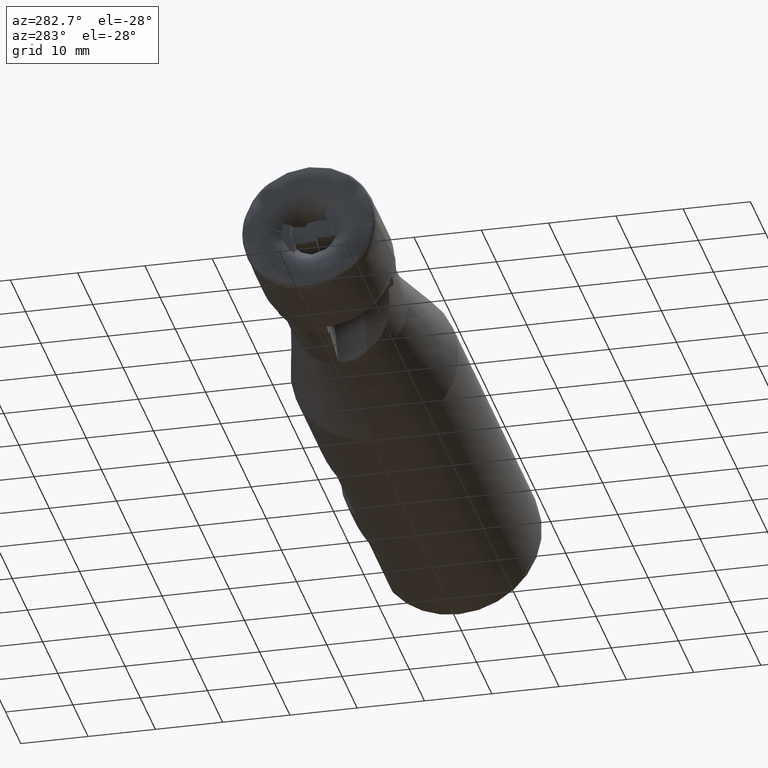
[diagram: clean part render]
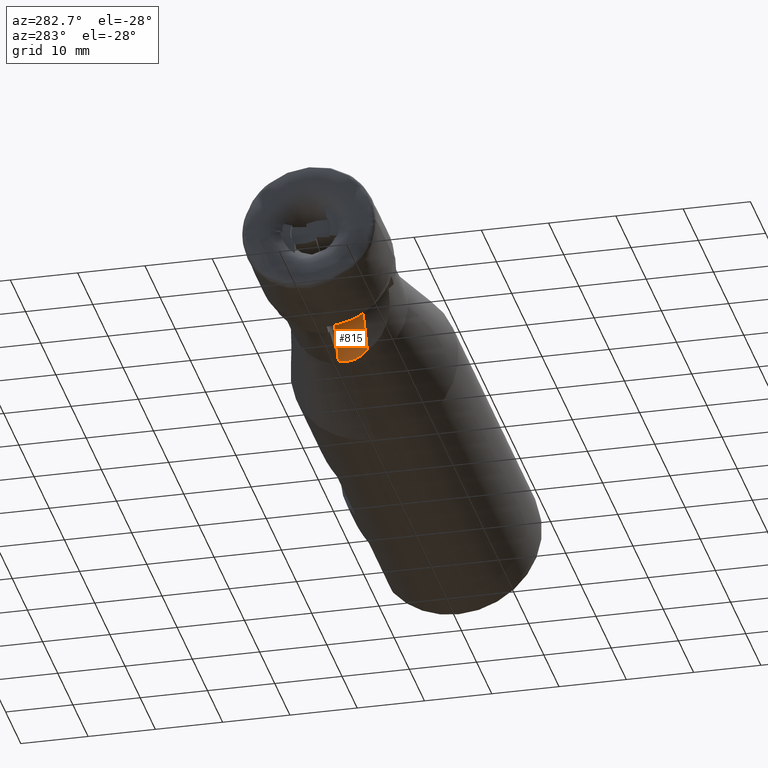
[diagram: same view with one face highlighted and labeled with its STEP entity id]
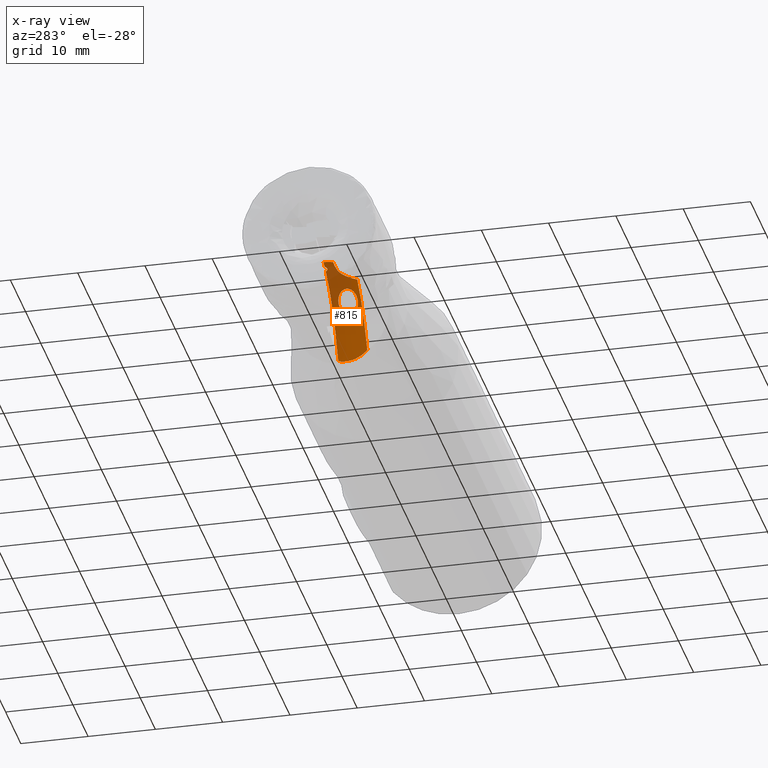
[diagram: x-ray of the same camera — body ghosted, the highlighted face saturated]
A machine part, auxiliary view. The second image highlights one B-rep face of the part: STEP entity #815.
The next image is the same camera in x-ray: the body ghosted, the highlighted face saturated — about 28% of this face is hidden behind the body in this view.
In plain terms, the highlighted toroidal blend (fillet) surface has major radius 10.884 mm and minor (blend) radius 10 mm.
Its self-contained STEP definition (entity closure, byte-faithful):
#41 = CIRCLE ( 'NONE', #676, 20.88400000000000700 ) ;
#90 = CARTESIAN_POINT ( 'NONE',  ( 25.00523610176858100, 5.412682312035088200E-015, -8.750000000000000000 ) ) ;
#100 = CARTESIAN_POINT ( 'NONE',  ( 19.04494832406326300, -0.4889408309650722400, -3.681397027868071400 ) ) ;
#103 = CARTESIAN_POINT ( 'NONE',  ( 19.48966100572471700, -1.024657287262729500, -4.020485614731864400 ) ) ;
#129 = CARTESIAN_POINT ( 'NONE',  ( 11.23514763945732800, 0.02552441210114513000, -1.062882610606581800 ) ) ;
#132 = CARTESIAN_POINT ( 'NONE',  ( 24.91628284550271700, -0.6227619918104200200, -8.732951840350338600 ) ) ;
#133 = CARTESIAN_POINT ( 'NONE',  ( 24.74002628487803800, -1.218702392632077500, -8.669893011018931600 ) ) ;
#135 = CARTESIAN_POINT ( 'NONE',  ( 10.30190673619949000, -0.06346182805844602400, -0.9729043330993625300 ) ) ;
#136 = CARTESIAN_POINT ( 'NONE',  ( 23.43376164793999200, -3.267349828298668200, -8.117076142276648200 ) ) ;
#137 = CARTESIAN_POINT ( 'NONE',  ( 24.97681617417573800, -0.3145072009141359800, -8.750000000000001800 ) ) ;
#138 = CARTESIAN_POINT ( 'NONE',  ( 11.02459479063509900, -0.1052804647818347100, -1.040171144685643000 ) ) ;
#139 = CARTESIAN_POINT ( 'NONE',  ( 24.62246767050882900, -1.510779856954307200, -8.623166605701865000 ) ) ;
#140 = CARTESIAN_POINT ( 'NONE',  ( 24.34561787329208800, -2.060939832647355800, -8.508465495732950900 ) ) ;
#141 = CARTESIAN_POINT ( 'NONE',  ( 24.18660149160178800, -2.320294763470944300, -8.440686936857252600 ) ) ;
#142 = CARTESIAN_POINT ( 'NONE',  ( 10.90528032597285900, -0.1528877076942975800, -1.028384415195529000 ) ) ;
#149 = CARTESIAN_POINT ( 'NONE',  ( 11.41435918556257300, 0.1982779828332956700, -1.086042688810845600 ) ) ;
#153 = CARTESIAN_POINT ( 'NONE',  ( 11.32910343102940900, 0.1082879746767585700, -1.074130805771298200 ) ) ;
#159 = CARTESIAN_POINT ( 'NONE',  ( 15.47385272271584500, -1.447623324622840700, -2.182082098991052500 ) ) ;
#160 = CARTESIAN_POINT ( 'NONE',  ( 10.09999745145485600, 0.08328623132604322200, -0.9590476529187306200 ) ) ;
#165 = CARTESIAN_POINT ( 'NONE',  ( 10.19584464439368800, 0.005766080994135278300, -0.9647533234062650700 ) ) ;
#193 = CARTESIAN_POINT ( 'NONE',  ( 23.63946460973665600, -3.048010613300929700, -8.205366301676601600 ) ) ;
#224 = CARTESIAN_POINT ( 'NONE',  ( 23.83421365729245900, -2.813222782786925200, -8.289435525404124800 ) ) ;
#241 = CARTESIAN_POINT ( 'NONE',  ( 15.31619526886903800, -1.663366848839784800, -2.168569718861990600 ) ) ;
#254 = CARTESIAN_POINT ( 'NONE',  ( 10.53209963767499400, -0.1565879745255515700, -0.9928148187442790200 ) ) ;
#267 = CARTESIAN_POINT ( 'NONE',  ( 19.38203401747186300, -0.8081899160687912000, -3.920078116989018600 ) ) ;
#268 = CARTESIAN_POINT ( 'NONE',  ( 19.14038533637631500, -0.5542343248852323900, -3.743706797162447100 ) ) ;
#269 = CARTESIAN_POINT ( 'NONE',  ( 16.03164002260468000, -0.9171686061118816700, -2.303108301806498400 ) ) ;
#272 = CARTESIAN_POINT ( 'NONE',  ( 17.36167453300582900, -0.3056485751753870700, -2.797550017222254000 ) ) ;
#274 = CARTESIAN_POINT ( 'NONE',  ( 15.82910995598950700, -1.076380135046355500, -2.248778973981024400 ) ) ;
#275 = CARTESIAN_POINT ( 'NONE',  ( 16.45415804393218200, -0.6494238128436143900, -2.437200428241340000 ) ) ;
#277 = CARTESIAN_POINT ( 'NONE',  ( 16.67384397852676200, -0.5407102864755276600, -2.516690544180035800 ) ) ;
#278 = CARTESIAN_POINT ( 'NONE',  ( 17.12850145652377900, -0.3681392738222501500, -2.697123615327677600 ) ) ;
#280 = CARTESIAN_POINT ( 'NONE',  ( 17.82475110695340000, -0.2342570752612876700, -3.011223649879414900 ) ) ;
#281 = CARTESIAN_POINT ( 'NONE',  ( 18.05977912225170100, -0.2244389211526817400, -3.126814823357029200 ) ) ;
#282 = CARTESIAN_POINT ( 'NONE',  ( 18.40311496909086500, -0.2605434271559492500, -3.307538699193452600 ) ) ;
#284 = CARTESIAN_POINT ( 'NONE',  ( 18.73522285508413500, -0.3420960540822599600, -3.493010192175479500 ) ) ;
#285 = CARTESIAN_POINT ( 'NONE',  ( 18.84327868046056100, -0.3832576294598820100, -3.556591325681888600 ) ) ;
#289 = CARTESIAN_POINT ( 'NONE',  ( 19.30929646501975900, -0.7141028119004739800, -3.863290113360277700 ) ) ;
#290 = CARTESIAN_POINT ( 'NONE',  ( 18.51546827286576400, -0.2809553755448521200, -3.368696162749168700 ) ) ;
#291 = CARTESIAN_POINT ( 'NONE',  ( 15.22243085588976500, -1.907470631148883800, -2.193693817598558300 ) ) ;
#293 = CARTESIAN_POINT ( 'NONE',  ( 19.52326093016867100, -1.146496912450257300, -4.063341745251066500 ) ) ;
#296 = CARTESIAN_POINT ( 'NONE',  ( 19.48935943335283800, -1.654782967664063500, -4.156202292336294200 ) ) ;
#299 = CARTESIAN_POINT ( 'NONE',  ( 19.52504782044701400, -1.529707492944751200, -4.146639617833938200 ) ) ;
#304 = CARTESIAN_POINT ( 'NONE',  ( 19.54091567611191800, -1.398538774557278400, -4.126282838499088600 ) ) ;
#305 = CARTESIAN_POINT ( 'NONE',  ( 10.65750636305701500, -0.1789041602980590800, -1.004579702775769900 ) ) ;
#344 = EDGE_LOOP ( 'NONE', ( #581, #1309 ) ) ;
#392 = EDGE_LOOP ( 'NONE', ( #1247, #1261, #541, #555, #598, #1942, #1932, #627 ) ) ;
#450 = B_SPLINE_CURVE_WITH_KNOTS ( 'NONE', 3,
 ( #1518, #1400, #1452, #1526, #1547, #1436, #1399, #1403, #1431, #1417, #1411, #1380, #1441, #1392, #1620, #1643, #1599, #1467, #1648, #1469, #1651, #1366, #1393, #1420, #1500, #1494 ),
 .UNSPECIFIED., .F., .F.,
 ( 4, 2, 2, 2, 2, 2, 2, 2, 2, 2, 2, 2, 4 ),
 ( 0.007534373769732580200, 0.007929870937406376800, 0.008325368105080173400, 0.009116362440427766600, 0.009907356775775359700, 0.01069835111112295500, 0.01148934544647054800, 0.01188484261414434300, 0.01228033978181814100, 0.01267583694949193200, 0.01307133411716572500, 0.01346683128483951900, 0.01386232845251331000 ),
 .UNSPECIFIED. ) ;
#462 = B_SPLINE_CURVE_WITH_KNOTS ( 'NONE', 3,
 ( #2267, #2255, #2289, #2219, #2230, #2309, #2365, #2221, #2224, #2174, #2168, #2142, #2284, #2264, #2182, #2374, #2245, #2330, #2299, #2318 ),
 .UNSPECIFIED., .F., .F.,
 ( 4, 2, 2, 2, 2, 2, 2, 2, 2, 4 ),
 ( 9.697399036122160600E-019, 0.0007244383642552741600, 0.001448876728510547000, 0.001811095910638184200, 0.002173315092765821800, 0.002897753457021094900, 0.003259972639148729000, 0.003622191821276363200, 0.004346630185531630600, 0.005795506914042167200 ),
 .UNSPECIFIED. ) ;
#465 = B_SPLINE_CURVE_WITH_KNOTS ( 'NONE', 3,
 ( #291, #241, #159, #274, #269, #275, #277, #278, #272, #280, #281, #282, #290, #284, #285, #100, #268, #289, #267, #103, #293, #304, #299, #296 ),
 .UNSPECIFIED., .F., .F.,
 ( 4, 2, 2, 2, 2, 2, 2, 2, 2, 2, 2, 4 ),
 ( 0.001279392732671723100, 0.002061265362304327200, 0.002843137991936934400, 0.003625010621569542100, 0.004406883251202149700, 0.005188755880834757300, 0.005579692195651060300, 0.005970628510467365000, 0.006361564825283667900, 0.006752501140099970800, 0.007143437454916275500, 0.007534373769732580200 ),
 .UNSPECIFIED. ) ;
#468 = B_SPLINE_CURVE_WITH_KNOTS ( 'NONE', 3,
 ( #160, #165, #135, #254, #305, #142, #138, #129, #153, #149 ),
 .UNSPECIFIED., .F., .F.,
 ( 4, 2, 2, 2, 4 ),
 ( 0.001610010941061462300, 0.001979078289371084800, 0.002348145637680707600, 0.002717212985990330300, 0.003086280334299952600 ),
 .UNSPECIFIED. ) ;
#541 = ORIENTED_EDGE ( 'NONE', *, *, #1357, .F. ) ;
#555 = ORIENTED_EDGE ( 'NONE', *, *, #1517, .T. ) ;
#581 = ORIENTED_EDGE ( 'NONE', *, *, #1695, .F. ) ;
#598 = ORIENTED_EDGE ( 'NONE', *, *, #1704, .T. ) ;
#627 = ORIENTED_EDGE ( 'NONE', *, *, #1766, .F. ) ;
#653 = AXIS2_PLACEMENT_3D ( 'NONE', #1522, #1507, #1503 ) ;
#676 = AXIS2_PLACEMENT_3D ( 'NONE', #3177, #3198, #3194 ) ;
#815 = ADVANCED_FACE ( 'NONE', ( #1256, #1271 ), #1221, .F. ) ;
#1003 = CARTESIAN_POINT ( 'NONE',  ( 8.889052101954995100, -1.452723564867003600, -1.017997851424185900 ) ) ;
#1057 = CARTESIAN_POINT ( 'NONE',  ( 12.60916826578095300, -4.214379036515368600, -2.291082953356612200 ) ) ;
#1082 = CARTESIAN_POINT ( 'NONE',  ( 19.48935943335283800, -1.654782967664063500, -4.156202292336294200 ) ) ;
#1089 = CARTESIAN_POINT ( 'NONE',  ( 15.22243085588976500, -1.907470631148883800, -2.193693817598558300 ) ) ;
#1102 = CARTESIAN_POINT ( 'NONE',  ( 8.764887941380418800, -0.03352071537112116100, -0.9159999999999982600 ) ) ;
#1111 = CARTESIAN_POINT ( 'NONE',  ( 11.41435918556257300, 0.1982779828332956700, -1.086042688810845600 ) ) ;
#1134 = CARTESIAN_POINT ( 'NONE',  ( 10.09999745145485600, 0.08328623132604322200, -0.9590476529187306200 ) ) ;
#1173 = CARTESIAN_POINT ( 'NONE',  ( 24.91951527507912400, 1.379826039813598900, -8.640519666076359700 ) ) ;
#1179 = CARTESIAN_POINT ( 'NONE',  ( 23.43376164793999200, -3.267349828298668200, -8.117076142276648200 ) ) ;
#1183 = CARTESIAN_POINT ( 'NONE',  ( 25.00523610176858100, 5.412682312035088200E-015, -8.750000000000000000 ) ) ;
#1221 = TOROIDAL_SURFACE ( 'NONE', #1338, 10.88400000000000200, 10.00000000000000000 ) ;
#1247 = ORIENTED_EDGE ( 'NONE', *, *, #1447, .F. ) ;
#1256 = FACE_OUTER_BOUND ( 'NONE', #392, .T. ) ;
#1261 = ORIENTED_EDGE ( 'NONE', *, *, #1530, .T. ) ;
#1271 = FACE_BOUND ( 'NONE', #344, .T. ) ;
#1309 = ORIENTED_EDGE ( 'NONE', *, *, #1345, .F. ) ;
#1338 = AXIS2_PLACEMENT_3D ( 'NONE', #2535, #2536, #2498 ) ;
#1345 = EDGE_CURVE ( 'NONE', #1977, #1883, #450, .T. ) ;
#1357 = EDGE_CURVE ( 'NONE', #1985, #1993, #2048, .T. ) ;
#1366 = CARTESIAN_POINT ( 'NONE',  ( 15.16435287717184500, -2.540760880052472800, -2.344261122230471000 ) ) ;
#1380 = CARTESIAN_POINT ( 'NONE',  ( 16.87052363051007100, -3.328539522008685300, -3.318033097214342600 ) ) ;
#1392 = CARTESIAN_POINT ( 'NONE',  ( 16.27371680880054300, -3.302054732153080900, -3.044750751959208700 ) ) ;
#1393 = CARTESIAN_POINT ( 'NONE',  ( 15.13985081075783000, -2.415072773687895400, -2.298056491904113800 ) ) ;
#1399 = CARTESIAN_POINT ( 'NONE',  ( 18.71200087909880600, -2.677314184670110300, -4.009028062358972000 ) ) ;
#1400 = CARTESIAN_POINT ( 'NONE',  ( 19.45325468820726700, -1.781317633598559900, -4.165876529642298800 ) ) ;
#1403 = CARTESIAN_POINT ( 'NONE',  ( 18.27992147096318800, -2.940322285139664400, -3.867464463115692000 ) ) ;
#1411 = CARTESIAN_POINT ( 'NONE',  ( 17.34790659210884200, -3.263635116475175600, -3.517296396591941500 ) ) ;
#1417 = CARTESIAN_POINT ( 'NONE',  ( 17.58858074967694700, -3.205891514830095300, -3.612508257837534500 ) ) ;
#1420 = CARTESIAN_POINT ( 'NONE',  ( 15.14571053089835900, -2.160773644000985300, -2.229515770321940100 ) ) ;
#1431 = CARTESIAN_POINT ( 'NONE',  ( 18.05448855116732100, -3.043843491482933800, -3.787472939179516600 ) ) ;
#1436 = CARTESIAN_POINT ( 'NONE',  ( 18.91614515537272500, -2.519344209050163200, -4.069834200670977800 ) ) ;
#1441 = CARTESIAN_POINT ( 'NONE',  ( 16.62998002202549600, -3.336888739814403600, -3.212552137382699500 ) ) ;
#1447 = EDGE_CURVE ( 'NONE', #1950, #1890, #2051, .T. ) ;
#1452 = CARTESIAN_POINT ( 'NONE',  ( 19.39688251781865000, -1.903509950097235400, -4.164933507046394600 ) ) ;
#1467 = CARTESIAN_POINT ( 'NONE',  ( 15.60711800995186500, -3.082059342567226700, -2.690365585566682600 ) ) ;
#1469 = CARTESIAN_POINT ( 'NONE',  ( 15.33527745092107300, -2.857782262201368000, -2.508475684924578200 ) ) ;
#1494 = CARTESIAN_POINT ( 'NONE',  ( 15.22243085588976500, -1.907470631148883800, -2.193693817598558300 ) ) ;
#1500 = CARTESIAN_POINT ( 'NONE',  ( 15.17500169881680300, -2.030946438924729100, -2.206402421933944900 ) ) ;
#1503 = DIRECTION ( 'NONE',  ( 0.08715574274765836000, -0.9961946980917455500, -6.938893903907226800E-015 ) ) ;
#1507 = DIRECTION ( 'NONE',  ( 0.9961946980917455500, 0.08715574274765838800, 6.086052987529240100E-016 ) ) ;
#1517 = EDGE_CURVE ( 'NONE', #1985, #1945, #2024, .T. ) ;
#1518 = CARTESIAN_POINT ( 'NONE',  ( 19.48935943335283800, -1.654782967664063500, -4.156202292336294200 ) ) ;
#1522 = CARTESIAN_POINT ( 'NONE',  ( 8.764887941380418800, -0.03352071537105286200, -10.91599999999999900 ) ) ;
#1526 = CARTESIAN_POINT ( 'NONE',  ( 19.26103276149056900, -2.127500106936445900, -4.148181018604042000 ) ) ;
#1530 = EDGE_CURVE ( 'NONE', #1950, #1993, #462, .T. ) ;
#1547 = CARTESIAN_POINT ( 'NONE',  ( 19.17990925835912500, -2.232425844084863900, -4.132251817144960700 ) ) ;
#1599 = CARTESIAN_POINT ( 'NONE',  ( 15.81744976949825000, -3.185098810698832500, -2.811319581263058700 ) ) ;
#1620 = CARTESIAN_POINT ( 'NONE',  ( 16.15714572602077900, -3.282586416008675700, -2.987858212261592900 ) ) ;
#1643 = CARTESIAN_POINT ( 'NONE',  ( 15.92952432614692200, -3.224307838449524500, -2.871421950746496900 ) ) ;
#1648 = CARTESIAN_POINT ( 'NONE',  ( 15.50775976493199200, -3.017742301472354300, -2.628889899863222200 ) ) ;
#1651 = CARTESIAN_POINT ( 'NONE',  ( 15.26197724881331500, -2.760755348222298200, -2.449051932887453400 ) ) ;
#1695 = EDGE_CURVE ( 'NONE', #1883, #1977, #465, .T. ) ;
#1704 = EDGE_CURVE ( 'NONE', #1945, #1965, #468, .T. ) ;
#1766 = EDGE_CURVE ( 'NONE', #1890, #1892, #2968, .T. ) ;
#1806 = EDGE_CURVE ( 'NONE', #1892, #1901, #3002, .T. ) ;
#1813 = EDGE_CURVE ( 'NONE', #1965, #1901, #41, .T. ) ;
#1883 = VERTEX_POINT ( 'NONE', #1089 ) ;
#1890 = VERTEX_POINT ( 'NONE', #1179 ) ;
#1892 = VERTEX_POINT ( 'NONE', #1183 ) ;
#1901 = VERTEX_POINT ( 'NONE', #1173 ) ;
#1932 = ORIENTED_EDGE ( 'NONE', *, *, #1806, .F. ) ;
#1942 = ORIENTED_EDGE ( 'NONE', *, *, #1813, .T. ) ;
#1945 = VERTEX_POINT ( 'NONE', #1134 ) ;
#1950 = VERTEX_POINT ( 'NONE', #1057 ) ;
#1965 = VERTEX_POINT ( 'NONE', #1111 ) ;
#1977 = VERTEX_POINT ( 'NONE', #1082 ) ;
#1985 = VERTEX_POINT ( 'NONE', #1102 ) ;
#1993 = VERTEX_POINT ( 'NONE', #1003 ) ;
#2008 = AXIS2_PLACEMENT_3D ( 'NONE', #2135, #2203, #2153 ) ;
#2011 = AXIS2_PLACEMENT_3D ( 'NONE', #2171, #2167, #2159 ) ;
#2024 = CIRCLE ( 'NONE', #2008, 20.88400000000000700 ) ;
#2048 = CIRCLE ( 'NONE', #653, 10.00000000000000200 ) ;
#2051 = CIRCLE ( 'NONE', #2011, 19.81428554974587500 ) ;
#2135 = CARTESIAN_POINT ( 'NONE',  ( 8.764887941380420600, -0.03352071537097518800, -21.80000000000000100 ) ) ;
#2142 = CARTESIAN_POINT ( 'NONE',  ( 11.61781441983738400, -1.746738921919192700, -1.284518160805932800 ) ) ;
#2153 = DIRECTION ( 'NONE',  ( -0.9961946980917454300, -0.08715574274765847100, 0.0000000000000000000 ) ) ;
#2159 = DIRECTION ( 'NONE',  ( -0.9961946980917456600, -0.08715574274765849900, 0.0000000000000000000 ) ) ;
#2167 = DIRECTION ( 'NONE',  ( -0.08715574274765848500, 0.9961946980917455500, 6.956390396483597400E-015 ) ) ;
#2168 = CARTESIAN_POINT ( 'NONE',  ( 11.92744849018349400, -1.919190032767716700, -1.365895304765784900 ) ) ;
#2171 = CARTESIAN_POINT ( 'NONE',  ( 9.157088783744884000, -4.516396856783832600, -21.80000000000003300 ) ) ;
#2174 = CARTESIAN_POINT ( 'NONE',  ( 12.11120007477914700, -2.074402136810824500, -1.430458424049142500 ) ) ;
#2182 = CARTESIAN_POINT ( 'NONE',  ( 11.16871017065589000, -1.583969919835212600, -1.194164906570404100 ) ) ;
#2203 = DIRECTION ( 'NONE',  ( -0.08715574274765848500, 0.9961946980917455500, 6.956390396483597400E-015 ) ) ;
#2219 = CARTESIAN_POINT ( 'NONE',  ( 12.62011916880243600, -3.328143474946100500, -1.905198170040280500 ) ) ;
#2221 = CARTESIAN_POINT ( 'NONE',  ( 12.37664408432248000, -2.452124258530768800, -1.575178981686853600 ) ) ;
#2224 = CARTESIAN_POINT ( 'NONE',  ( 12.31754927691522800, -2.351037346021852800, -1.537200924355037100 ) ) ;
#2230 = CARTESIAN_POINT ( 'NONE',  ( 12.59618053598197900, -3.100454690584625500, -1.817578420865452600 ) ) ;
#2245 = CARTESIAN_POINT ( 'NONE',  ( 10.58019003085561700, -1.473230738299498500, -1.110482580897618000 ) ) ;
#2255 = CARTESIAN_POINT ( 'NONE',  ( 12.62436363232116000, -3.995911501530622800, -2.186447459446199100 ) ) ;
#2264 = CARTESIAN_POINT ( 'NONE',  ( 11.28325172159801100, -1.616630172331461600, -1.214351523308845100 ) ) ;
#2267 = CARTESIAN_POINT ( 'NONE',  ( 12.60916826578095300, -4.214379036515368600, -2.291082953356612200 ) ) ;
#2284 = CARTESIAN_POINT ( 'NONE',  ( 11.50793555404965000, -1.697954574427071700, -1.259523952456381500 ) ) ;
#2289 = CARTESIAN_POINT ( 'NONE',  ( 12.63411884968600200, -3.774493166801028600, -2.089167055818343500 ) ) ;
#2299 = CARTESIAN_POINT ( 'NONE',  ( 9.373812626721427700, -1.430540647508751200, -1.020898216940526300 ) ) ;
#2309 = CARTESIAN_POINT ( 'NONE',  ( 12.50970714366677300, -2.769526214176968100, -1.693356982216295500 ) ) ;
#2318 = CARTESIAN_POINT ( 'NONE',  ( 8.889052101954995100, -1.452723564867003600, -1.017997851424185900 ) ) ;
#2330 = CARTESIAN_POINT ( 'NONE',  ( 9.857437975456424100, -1.420523659661966100, -1.042378184554933600 ) ) ;
#2365 = CARTESIAN_POINT ( 'NONE',  ( 12.47256738453451200, -2.661528996362074300, -1.653300527599332400 ) ) ;
#2374 = CARTESIAN_POINT ( 'NONE',  ( 10.82017278694364000, -1.503564103033474300, -1.139401868388064500 ) ) ;
#2498 = DIRECTION ( 'NONE',  ( -0.9961946980917455500, -0.08715574274765848500, 0.0000000000000000000 ) ) ;
#2535 = CARTESIAN_POINT ( 'NONE',  ( 8.764887941380420600, -0.03352071537097670000, -21.80000000000000100 ) ) ;
#2536 = DIRECTION ( 'NONE',  ( -0.08715574274765848500, 0.9961946980917455500, 6.956390396483597400E-015 ) ) ;
#2968 = B_SPLINE_CURVE_WITH_KNOTS ( 'NONE', 3,
 ( #136, #193, #224, #141, #140, #139, #133, #132, #137, #90 ),
 .UNSPECIFIED., .F., .F.,
 ( 4, 2, 2, 2, 4 ),
 ( 0.002037227317283251300, 0.002973181312192305500, 0.003909135307101360200, 0.004845089302010414400, 0.005781043296919468600 ),
 .UNSPECIFIED. ) ;
#3002 = B_SPLINE_CURVE_WITH_KNOTS ( 'NONE', 3,
 ( #3250, #3093, #3099, #3091 ),
 .UNSPECIFIED., .F., .F.,
 ( 4, 4 ),
 ( 0.005781043296919468600, 0.007169565205976923200 ),
 .UNSPECIFIED. ) ;
#3091 = CARTESIAN_POINT ( 'NONE',  ( 24.91951527507912400, 1.379826039813598900, -8.640519666076359700 ) ) ;
#3093 = CARTESIAN_POINT ( 'NONE',  ( 25.04739810153690300, 0.4665829104859585100, -8.750000000000000000 ) ) ;
#3099 = CARTESIAN_POINT ( 'NONE',  ( 25.01815910017910500, 0.9264441699406593700, -8.712921342619749200 ) ) ;
#3177 = CARTESIAN_POINT ( 'NONE',  ( 8.764887941380420600, -0.03352071537097518800, -21.80000000000000100 ) ) ;
#3194 = DIRECTION ( 'NONE',  ( -0.9961946980917454300, -0.08715574274765847100, 0.0000000000000000000 ) ) ;
#3198 = DIRECTION ( 'NONE',  ( -0.08715574274765848500, 0.9961946980917455500, 6.956390396483597400E-015 ) ) ;
#3250 = CARTESIAN_POINT ( 'NONE',  ( 25.00523610176858100, 5.412682312035088200E-015, -8.750000000000000000 ) ) ;